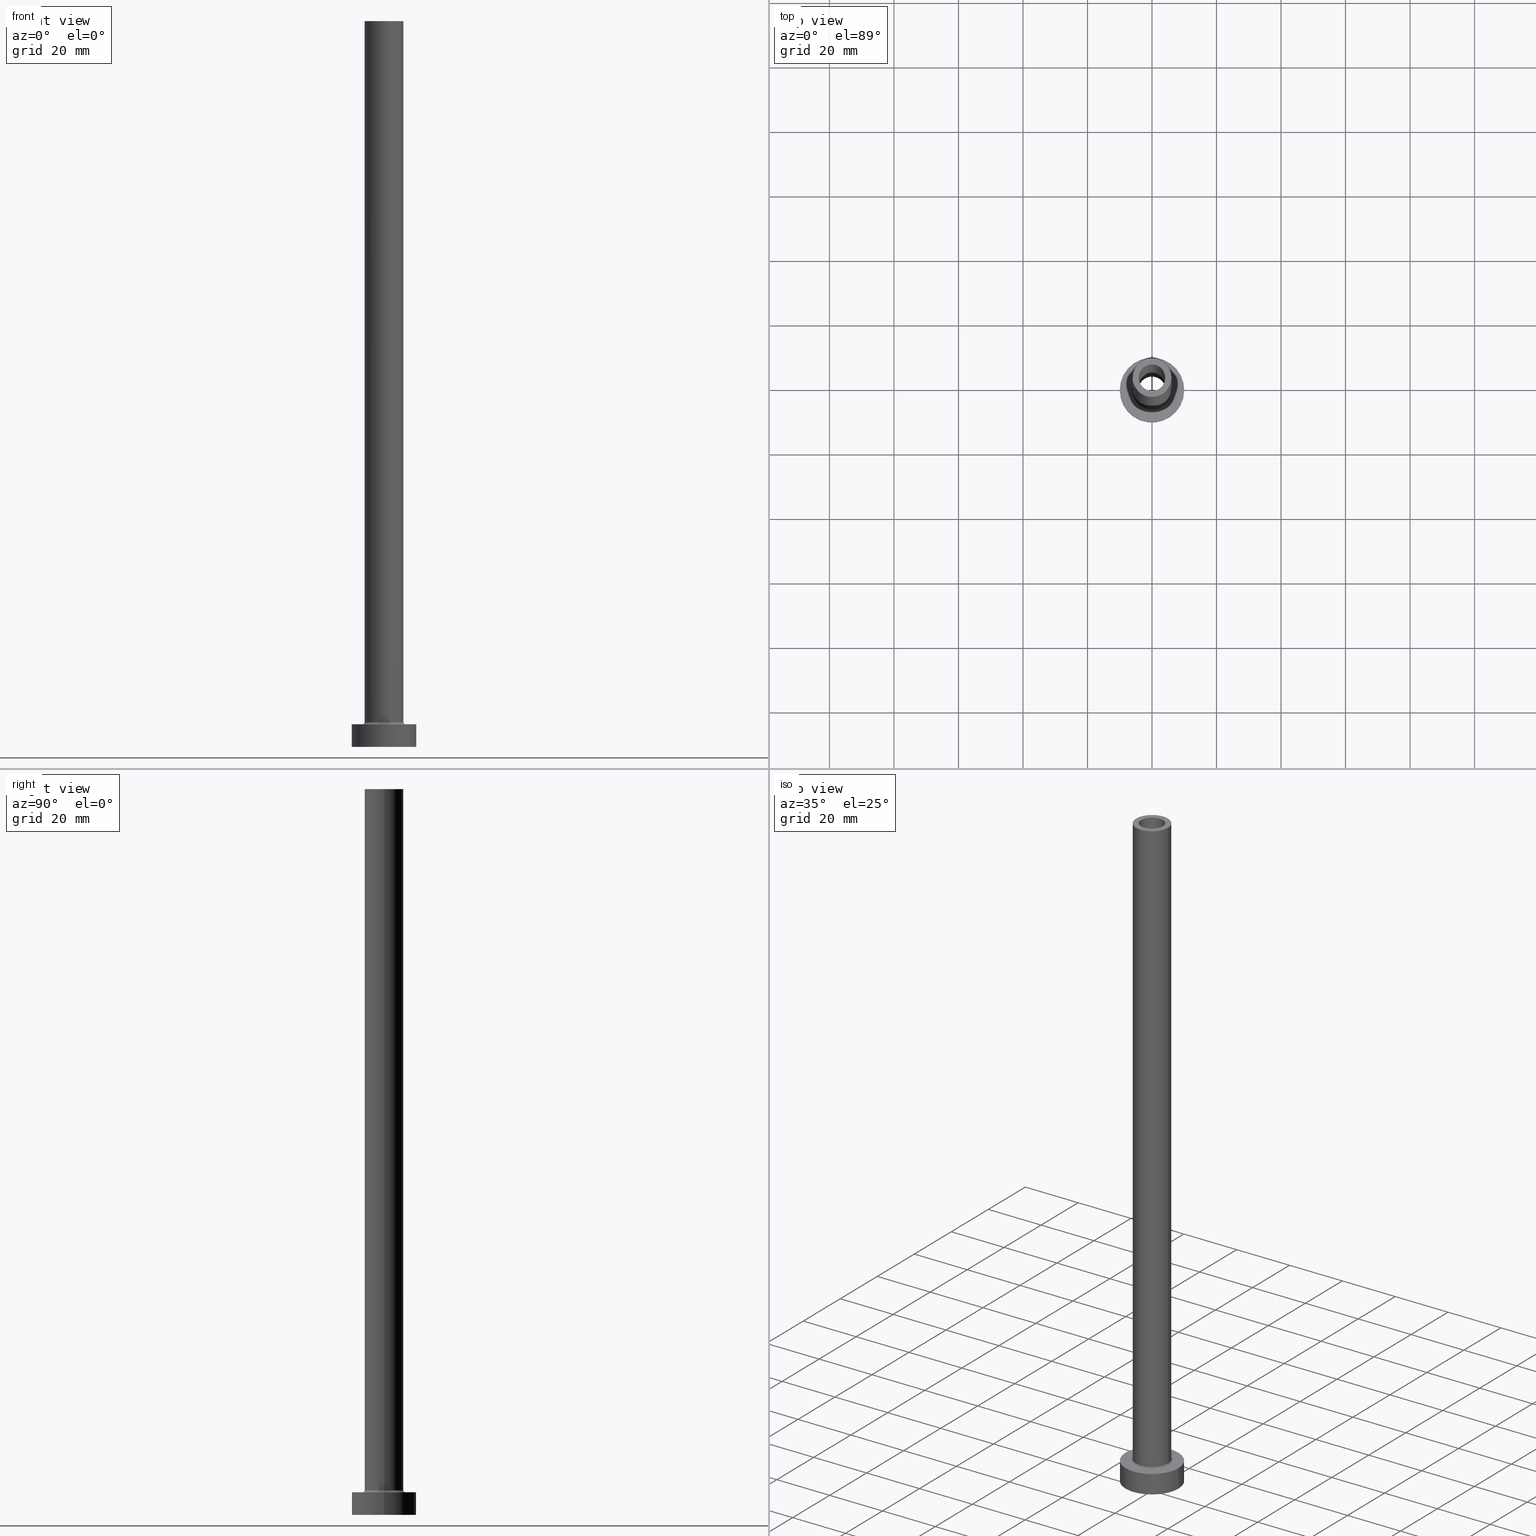
[diagram: canonical four-view strip — front | top / right | iso, engineering-drawing reading convention]
A machine part, canonical four-view strip (front | top / right | iso — engineering-drawing reading convention). The complete STEP part file that produces these views, byte-faithful:
ISO-10303-21;
HEADER;
FILE_DESCRIPTION (( 'STEP AP203' ),
    '1' );
FILE_NAME ('23bb.STEP',
    '2023-02-13T07:40:43',
    ( '' ),
    ( '' ),
    'SwSTEP 2.0',
    'SolidWorks 2019',
    '' );
FILE_SCHEMA (( 'CONFIG_CONTROL_DESIGN' ));
ENDSEC;

DATA;
#1 = AXIS2_PLACEMENT_3D ( 'NONE', #368, #460, #329 ) ;
#2 = VERTEX_POINT ( 'NONE', #112 ) ;
#3 = FACE_OUTER_BOUND ( 'NONE', #459, .T. ) ;
#4 = ORIENTED_EDGE ( 'NONE', *, *, #414, .F. ) ;
#5 = EDGE_CURVE ( 'NONE', #104, #36, #389, .T. ) ;
#6 = DIRECTION ( 'NONE',  ( 1.000000000000000000, 0.000000000000000000, 0.000000000000000000 ) ) ;
#7 = ORIENTED_EDGE ( 'NONE', *, *, #114, .F. ) ;
#8 = EDGE_LOOP ( 'NONE', ( #74, #228, #102, #168 ) ) ;
#9 = DIRECTION ( 'NONE',  ( 1.000000000000000000, 0.000000000000000000, 0.000000000000000000 ) ) ;
#10 = ORIENTED_EDGE ( 'NONE', *, *, #390, .F. ) ;
#11 = EDGE_CURVE ( 'NONE', #311, #433, #442, .T. ) ;
#12 = CYLINDRICAL_SURFACE ( 'NONE', #99, 10.00000000000000000 ) ;
#13 = EDGE_LOOP ( 'NONE', ( #193, #338 ) ) ;
#14 =( GEOMETRIC_REPRESENTATION_CONTEXT ( 3 ) GLOBAL_UNCERTAINTY_ASSIGNED_CONTEXT ( ( #385 ) ) GLOBAL_UNIT_ASSIGNED_CONTEXT ( ( #402, #182, #243 ) ) REPRESENTATION_CONTEXT ( 'NONE', 'WORKASPACE' ) );
#15 = DIRECTION ( 'NONE',  ( -1.000000000000000000, 0.000000000000000000, 0.000000000000000000 ) ) ;
#16 = DIRECTION ( 'NONE',  ( 1.000000000000000000, 0.000000000000000000, 0.000000000000000000 ) ) ;
#17 = DIRECTION ( 'NONE',  ( -0.000000000000000000, -0.000000000000000000, -1.000000000000000000 ) ) ;
#18 = AXIS2_PLACEMENT_3D ( 'NONE', #140, #432, #227 ) ;
#19 = CARTESIAN_POINT ( 'NONE',  ( 6.000000000000000888, 7.347880794884120722E-16, 7.700000000000012612 ) ) ;
#20 = CARTESIAN_POINT ( 'NONE',  ( 10.00000000000000000, 1.224646799147353256E-15, 7.000000000000000000 ) ) ;
#21 = DESIGN_CONTEXT ( 'detailed design', #316, 'design' ) ;
#22 = CARTESIAN_POINT ( 'NONE',  ( 0.000000000000000000, 0.000000000000000000, 180.0000000000000000 ) ) ;
#23 = APPROVAL ( #421, 'NEUR�EN�' ) ;
#24 = AXIS2_PLACEMENT_3D ( 'NONE', #150, #324, #280 ) ;
#25 = CARTESIAN_POINT ( 'NONE',  ( 0.000000000000000000, 0.000000000000000000, 0.000000000000000000 ) ) ;
#26 = CALENDAR_DATE ( 2023, 13, 2 ) ;
#27 = APPROVAL_DATE_TIME ( #255, #87 ) ;
#28 = AXIS2_PLACEMENT_3D ( 'NONE', #290, #451, #261 ) ;
#29 = AXIS2_PLACEMENT_3D ( 'NONE', #267, #134, #83 ) ;
#30 = PERSON_AND_ORGANIZATION ( #237, #167 ) ;
#31 = VERTEX_POINT ( 'NONE', #19 ) ;
#32 = PERSON_AND_ORGANIZATION_ROLE ( 'design_owner' ) ;
#33 = ORIENTED_EDGE ( 'NONE', *, *, #250, .T. ) ;
#34 = VERTEX_POINT ( 'NONE', #177 ) ;
#35 = EDGE_CURVE ( 'NONE', #104, #198, #153, .T. ) ;
#36 = VERTEX_POINT ( 'NONE', #404 ) ;
#37 = CIRCLE ( 'NONE', #412, 10.00000000000000000 ) ;
#38 = VERTEX_POINT ( 'NONE', #119 ) ;
#39 = DIRECTION ( 'NONE',  ( 0.000000000000000000, 0.000000000000000000, -1.000000000000000000 ) ) ;
#40 = VERTEX_POINT ( 'NONE', #452 ) ;
#41 = DIRECTION ( 'NONE',  ( 1.000000000000000000, 0.000000000000000000, 0.000000000000000000 ) ) ;
#42 = EDGE_LOOP ( 'NONE', ( #429, #375, #342, #336 ) ) ;
#43 = CARTESIAN_POINT ( 'NONE',  ( 0.000000000000000000, 0.000000000000000000, 225.0000000000000000 ) ) ;
#44 = ORIENTED_EDGE ( 'NONE', *, *, #262, .T. ) ;
#45 = DIRECTION ( 'NONE',  ( -0.000000000000000000, -0.000000000000000000, -1.000000000000000000 ) ) ;
#46 = ORIENTED_EDGE ( 'NONE', *, *, #384, .F. ) ;
#47 = EDGE_CURVE ( 'NONE', #301, #195, #410, .T. ) ;
#48 = ADVANCED_FACE ( 'NONE', ( #415 ), #247, .F. ) ;
#49 = AXIS2_PLACEMENT_3D ( 'NONE', #55, #321, #446 ) ;
#50 = FACE_OUTER_BOUND ( 'NONE', #137, .T. ) ;
#51 = LOCAL_TIME ( 8, 40, 43.00000000000000000, #298 ) ;
#52 = CARTESIAN_POINT ( 'NONE',  ( 0.000000000000000000, 0.000000000000000000, 0.000000000000000000 ) ) ;
#53 = CC_DESIGN_DATE_AND_TIME_ASSIGNMENT ( #124, #97, ( #175 ) ) ;
#54 = DIRECTION ( 'NONE',  ( 1.000000000000000000, 0.000000000000000000, 0.000000000000000000 ) ) ;
#55 = CARTESIAN_POINT ( 'NONE',  ( 0.000000000000000000, 0.000000000000000000, 7.700000000000012612 ) ) ;
#56 = AXIS2_PLACEMENT_3D ( 'NONE', #22, #383, #41 ) ;
#57 = VECTOR ( 'NONE', #457, 1000.000000000000000 ) ;
#58 = FACE_OUTER_BOUND ( 'NONE', #299, .T. ) ;
#59 = EDGE_CURVE ( 'NONE', #433, #190, #431, .T. ) ;
#60 = DIRECTION ( 'NONE',  ( 0.000000000000000000, 0.000000000000000000, -1.000000000000000000 ) ) ;
#61 = DIRECTION ( 'NONE',  ( 0.000000000000000000, 0.000000000000000000, 1.000000000000000000 ) ) ;
#62 = AXIS2_PLACEMENT_3D ( 'NONE', #289, #218, #443 ) ;
#63 = CARTESIAN_POINT ( 'NONE',  ( 0.000000000000000000, 0.000000000000000000, 180.0000000000000000 ) ) ;
#64 = APPLICATION_PROTOCOL_DEFINITION ( 'international standard', 'config_control_design', 1994, #316 ) ;
#65 = AXIS2_PLACEMENT_3D ( 'NONE', #348, #272, #9 ) ;
#66 = CIRCLE ( 'NONE', #90, 0.7000000000000000666 ) ;
#67 = APPROVAL_DATE_TIME ( #161, #226 ) ;
#68 = ORIENTED_EDGE ( 'NONE', *, *, #334, .F. ) ;
#69 = ORIENTED_EDGE ( 'NONE', *, *, #334, .T. ) ;
#70 = FACE_OUTER_BOUND ( 'NONE', #139, .T. ) ;
#71 = ORIENTED_EDGE ( 'NONE', *, *, #221, .F. ) ;
#72 = AXIS2_PLACEMENT_3D ( 'NONE', #63, #165, #297 ) ;
#73 = AXIS2_PLACEMENT_3D ( 'NONE', #127, #370, #101 ) ;
#74 = ORIENTED_EDGE ( 'NONE', *, *, #293, .F. ) ;
#75 = DIRECTION ( 'NONE',  ( 0.000000000000000000, 0.000000000000000000, 1.000000000000000000 ) ) ;
#76 = ADVANCED_FACE ( 'NONE', ( #251 ), #211, .F. ) ;
#77 = DIRECTION ( 'NONE',  ( 1.000000000000000000, 0.000000000000000000, -0.000000000000000000 ) ) ;
#78 = EDGE_LOOP ( 'NONE', ( #234, #239 ) ) ;
#79 = EDGE_CURVE ( 'NONE', #31, #430, #199, .T. ) ;
#80 = DIRECTION ( 'NONE',  ( -0.000000000000000000, -0.000000000000000000, -1.000000000000000000 ) ) ;
#81 = ORIENTED_EDGE ( 'NONE', *, *, #35, .T. ) ;
#82 = DIRECTION ( 'NONE',  ( -0.000000000000000000, -0.000000000000000000, -1.000000000000000000 ) ) ;
#83 = DIRECTION ( 'NONE',  ( 1.000000000000000000, 0.000000000000000000, -0.000000000000000000 ) ) ;
#84 = CC_DESIGN_APPROVAL ( #226, ( #175 ) ) ;
#85 = DIRECTION ( 'NONE',  ( 0.000000000000000000, 0.000000000000000000, 1.000000000000000000 ) ) ;
#86 = ORIENTED_EDGE ( 'NONE', *, *, #275, .F. ) ;
#87 = APPROVAL ( #366, 'NEUR�EN�' ) ;
#88 = CARTESIAN_POINT ( 'NONE',  ( 6.700000000000001066, 0.000000000000000000, 7.000000000000006217 ) ) ;
#89 = PLANE ( 'NONE',  #233 ) ;
#90 = AXIS2_PLACEMENT_3D ( 'NONE', #249, #215, #286 ) ;
#91 = EDGE_CURVE ( 'NONE', #34, #311, #94, .T. ) ;
#92 = DIRECTION ( 'NONE',  ( 0.000000000000000000, 0.000000000000000000, 1.000000000000000000 ) ) ;
#93 = CARTESIAN_POINT ( 'NONE',  ( 0.000000000000000000, 0.000000000000000000, 7.000000000000000000 ) ) ;
#94 = CIRCLE ( 'NONE', #453, 10.00000000000000000 ) ;
#95 = CARTESIAN_POINT ( 'NONE',  ( 0.000000000000000000, 0.000000000000000000, 7.700000000000012612 ) ) ;
#96 = COORDINATED_UNIVERSAL_TIME_OFFSET ( 1, 0, .AHEAD. ) ;
#97 = DATE_TIME_ROLE ( 'creation_date' ) ;
#98 = CC_DESIGN_DATE_AND_TIME_ASSIGNMENT ( #126, #461, ( #441 ) ) ;
#99 = AXIS2_PLACEMENT_3D ( 'NONE', #178, #80, #206 ) ;
#100 = AXIS2_PLACEMENT_3D ( 'NONE', #447, #61, #16 ) ;
#101 = DIRECTION ( 'NONE',  ( 1.000000000000000000, 0.000000000000000000, 0.000000000000000000 ) ) ;
#102 = ORIENTED_EDGE ( 'NONE', *, *, #186, .T. ) ;
#103 = CARTESIAN_POINT ( 'NONE',  ( -4.099999999999999645, 0.000000000000000000, 225.0000000000000000 ) ) ;
#104 = VERTEX_POINT ( 'NONE', #426 ) ;
#105 = DIRECTION ( 'NONE',  ( 0.000000000000000000, 0.000000000000000000, -1.000000000000000000 ) ) ;
#106 = ORIENTED_EDGE ( 'NONE', *, *, #436, .T. ) ;
#107 = AXIS2_PLACEMENT_3D ( 'NONE', #361, #401, #354 ) ;
#108 = LOCAL_TIME ( 8, 40, 43.00000000000000000, #96 ) ;
#109 = DIRECTION ( 'NONE',  ( 1.000000000000000000, 0.000000000000000000, 0.000000000000000000 ) ) ;
#110 = DIRECTION ( 'NONE',  ( 0.000000000000000000, 0.000000000000000000, 1.000000000000000000 ) ) ;
#111 = ORIENTED_EDGE ( 'NONE', *, *, #197, .T. ) ;
#112 = CARTESIAN_POINT ( 'NONE',  ( -4.250000000000000000, 0.000000000000000000, 0.000000000000000000 ) ) ;
#113 = PLANE ( 'NONE',  #403 ) ;
#114 = EDGE_CURVE ( 'NONE', #2, #195, #219, .T. ) ;
#115 = FACE_OUTER_BOUND ( 'NONE', #278, .T. ) ;
#116 = DIRECTION ( 'NONE',  ( 0.000000000000000000, 0.000000000000000000, -1.000000000000000000 ) ) ;
#117 = FACE_BOUND ( 'NONE', #192, .T. ) ;
#118 = DIRECTION ( 'NONE',  ( -0.000000000000000000, -0.000000000000000000, -1.000000000000000000 ) ) ;
#119 = CARTESIAN_POINT ( 'NONE',  ( -6.700000000000001066, 8.205133554287267548E-16, 7.000000000000006217 ) ) ;
#120 = MANIFOLD_SOLID_BREP ( 'Odebrat vysunut�m4', #440 ) ;
#121 = DIRECTION ( 'NONE',  ( 0.000000000000000000, 0.000000000000000000, 1.000000000000000000 ) ) ;
#122 = DATE_AND_TIME ( #254, #108 ) ;
#123 = EDGE_CURVE ( 'NONE', #143, #198, #283, .T. ) ;
#124 = DATE_AND_TIME ( #26, #449 ) ;
#125 = AXIS2_PLACEMENT_3D ( 'NONE', #151, #92, #353 ) ;
#126 = DATE_AND_TIME ( #300, #319 ) ;
#127 = CARTESIAN_POINT ( 'NONE',  ( 0.000000000000000000, 0.000000000000000000, 0.000000000000000000 ) ) ;
#128 = ADVANCED_FACE ( 'NONE', ( #163 ), #371, .T. ) ;
#129 = PERSON_AND_ORGANIZATION ( #237, #167 ) ;
#130 = ORIENTED_EDGE ( 'NONE', *, *, #189, .T. ) ;
#131 = CARTESIAN_POINT ( 'NONE',  ( 0.000000000000000000, 0.000000000000000000, 7.000000000000000000 ) ) ;
#132 = CIRCLE ( 'NONE', #411, 6.700000000000001066 ) ;
#133 = ORIENTED_EDGE ( 'NONE', *, *, #456, .T. ) ;
#134 = DIRECTION ( 'NONE',  ( 0.000000000000000000, 0.000000000000000000, 1.000000000000000000 ) ) ;
#135 = EDGE_LOOP ( 'NONE', ( #7, #71 ) ) ;
#136 = CARTESIAN_POINT ( 'NONE',  ( 4.250000000000000000, 5.204748896376249713E-16, 180.0000000000000000 ) ) ;
#137 = EDGE_LOOP ( 'NONE', ( #130, #347, #427, #397 ) ) ;
#138 = DIRECTION ( 'NONE',  ( 1.000000000000000000, 0.000000000000000000, 0.000000000000000000 ) ) ;
#139 = EDGE_LOOP ( 'NONE', ( #345, #147, #349, #307 ) ) ;
#140 = CARTESIAN_POINT ( 'NONE',  ( 0.000000000000000000, 0.000000000000000000, 7.000000000000000000 ) ) ;
#141 = VERTEX_POINT ( 'NONE', #418 ) ;
#142 = AXIS2_PLACEMENT_3D ( 'NONE', #230, #75, #351 ) ;
#143 = VERTEX_POINT ( 'NONE', #216 ) ;
#144 = CC_DESIGN_APPROVAL ( #87, ( #223 ) ) ;
#145 = CARTESIAN_POINT ( 'NONE',  ( 0.000000000000000000, 0.000000000000000000, 7.000000000000000000 ) ) ;
#146 = ORIENTED_EDGE ( 'NONE', *, *, #408, .T. ) ;
#147 = ORIENTED_EDGE ( 'NONE', *, *, #5, .T. ) ;
#148 = CARTESIAN_POINT ( 'NONE',  ( 0.000000000000000000, 0.000000000000000000, 180.0000000000000000 ) ) ;
#149 = ADVANCED_FACE ( 'NONE', ( #58 ), #444, .T. ) ;
#150 = CARTESIAN_POINT ( 'NONE',  ( 0.000000000000000000, 0.000000000000000000, 180.0000000000000000 ) ) ;
#151 = CARTESIAN_POINT ( 'NONE',  ( 0.000000000000000000, 0.000000000000000000, 0.000000000000000000 ) ) ;
#152 = VECTOR ( 'NONE', #381, 1000.000000000000000 ) ;
#153 = LINE ( 'NONE', #282, #252 ) ;
#154 = FACE_BOUND ( 'NONE', #13, .T. ) ;
#155 = AXIS2_PLACEMENT_3D ( 'NONE', #314, #39, #15 ) ;
#156 = AXIS2_PLACEMENT_3D ( 'NONE', #315, #60, #364 ) ;
#157 = DIRECTION ( 'NONE',  ( 1.000000000000000000, 0.000000000000000000, 0.000000000000000000 ) ) ;
#158 = CC_DESIGN_PERSON_AND_ORGANIZATION_ASSIGNMENT ( #409, #458, ( #175 ) ) ;
#159 = PERSON_AND_ORGANIZATION ( #237, #167 ) ;
#160 = CIRCLE ( 'NONE', #448, 6.000000000000000888 ) ;
#161 = DATE_AND_TIME ( #335, #200 ) ;
#162 = ORIENTED_EDGE ( 'NONE', *, *, #123, .T. ) ;
#163 = FACE_OUTER_BOUND ( 'NONE', #8, .T. ) ;
#164 = COORDINATED_UNIVERSAL_TIME_OFFSET ( 1, 0, .AHEAD. ) ;
#165 = DIRECTION ( 'NONE',  ( 0.000000000000000000, 0.000000000000000000, 1.000000000000000000 ) ) ;
#166 = ORIENTED_EDGE ( 'NONE', *, *, #79, .T. ) ;
#167 = ORGANIZATION ( 'NEUR�EN�', 'NEUR�EN�', '' ) ;
#168 = ORIENTED_EDGE ( 'NONE', *, *, #197, .F. ) ;
#169 = CARTESIAN_POINT ( 'NONE',  ( 0.000000000000000000, 0.000000000000000000, 225.0000000000000000 ) ) ;
#170 = ORIENTED_EDGE ( 'NONE', *, *, #308, .F. ) ;
#171 = CARTESIAN_POINT ( 'NONE',  ( 4.250000000000000000, 5.204748896376249713E-16, 0.000000000000000000 ) ) ;
#172 = DIRECTION ( 'NONE',  ( 1.000000000000000000, 0.000000000000000000, 0.000000000000000000 ) ) ;
#173 = CARTESIAN_POINT ( 'NONE',  ( 4.099999999999999645, 5.021051876504147385E-16, 180.0000000000000000 ) ) ;
#174 = TOROIDAL_SURFACE ( 'NONE', #100, 6.700000000000001066, 0.6999999999999999556 ) ;
#175 = PRODUCT_DEFINITION ( 'NEZN�M�', '', #223, #21 ) ;
#176 = CYLINDRICAL_SURFACE ( 'NONE', #155, 4.250000000000000000 ) ;
#177 = CARTESIAN_POINT ( 'NONE',  ( 10.00000000000000000, 1.224646799147353256E-15, 7.000000000000000000 ) ) ;
#178 = CARTESIAN_POINT ( 'NONE',  ( 0.000000000000000000, 0.000000000000000000, 7.000000000000000000 ) ) ;
#179 = AXIS2_PLACEMENT_3D ( 'NONE', #43, #240, #172 ) ;
#180 = FACE_OUTER_BOUND ( 'NONE', #303, .T. ) ;
#181 = APPROVAL_PERSON_ORGANIZATION ( #191, #87, #330 ) ;
#182 =( NAMED_UNIT ( * ) PLANE_ANGLE_UNIT ( ) SI_UNIT ( $, .RADIAN. ) );
#183 = DIRECTION ( 'NONE',  ( 0.000000000000000000, 0.000000000000000000, 1.000000000000000000 ) ) ;
#184 = APPROVAL_ROLE ( '' ) ;
#185 = MECHANICAL_CONTEXT ( 'NONE', #291, 'mechanical' ) ;
#186 = EDGE_CURVE ( 'NONE', #31, #40, #312, .T. ) ;
#187 = DIRECTION ( 'NONE',  ( 0.000000000000000000, 0.000000000000000000, 1.000000000000000000 ) ) ;
#188 = COORDINATED_UNIVERSAL_TIME_OFFSET ( 1, 0, .AHEAD. ) ;
#189 = EDGE_CURVE ( 'NONE', #270, #301, #207, .T. ) ;
#190 = VERTEX_POINT ( 'NONE', #269 ) ;
#191 = PERSON_AND_ORGANIZATION ( #237, #167 ) ;
#192 = EDGE_LOOP ( 'NONE', ( #201, #44 ) ) ;
#193 = ORIENTED_EDGE ( 'NONE', *, *, #250, .F. ) ;
#194 = PRODUCT_DEFINITION_SHAPE ( 'NONE', 'NONE',  #175 ) ;
#195 = VERTEX_POINT ( 'NONE', #171 ) ;
#196 = CYLINDRICAL_SURFACE ( 'NONE', #357, 4.099999999999999645 ) ;
#197 = EDGE_CURVE ( 'NONE', #379, #40, #248, .T. ) ;
#198 = VERTEX_POINT ( 'NONE', #173 ) ;
#199 = CIRCLE ( 'NONE', #28, 0.7000000000000000666 ) ;
#200 = LOCAL_TIME ( 8, 40, 43.00000000000000000, #333 ) ;
#201 = ORIENTED_EDGE ( 'NONE', *, *, #390, .T. ) ;
#202 = DIRECTION ( 'NONE',  ( -1.000000000000000000, 0.000000000000000000, 0.000000000000000000 ) ) ;
#203 = ORIENTED_EDGE ( 'NONE', *, *, #186, .F. ) ;
#204 = DIRECTION ( 'NONE',  ( 0.000000000000000000, 0.000000000000000000, -1.000000000000000000 ) ) ;
#205 = CC_DESIGN_PERSON_AND_ORGANIZATION_ASSIGNMENT ( #292, #417, ( #223 ) ) ;
#206 = DIRECTION ( 'NONE',  ( -1.000000000000000000, 0.000000000000000000, 0.000000000000000000 ) ) ;
#207 = CIRCLE ( 'NONE', #56, 4.250000000000000000 ) ;
#208 = AXIS2_PLACEMENT_3D ( 'NONE', #148, #279, #428 ) ;
#209 = LINE ( 'NONE', #424, #355 ) ;
#210 = CARTESIAN_POINT ( 'NONE',  ( 0.000000000000000000, 0.000000000000000000, 7.000000000000000000 ) ) ;
#211 = CYLINDRICAL_SURFACE ( 'NONE', #259, 4.099999999999999645 ) ;
#212 = DIRECTION ( 'NONE',  ( -0.000000000000000000, -0.000000000000000000, -1.000000000000000000 ) ) ;
#213 = AXIS2_PLACEMENT_3D ( 'NONE', #25, #187, #157 ) ;
#214 = CIRCLE ( 'NONE', #313, 6.700000000000001066 ) ;
#215 = DIRECTION ( 'NONE',  ( 1.224646799147353207E-16, 1.000000000000000000, -0.000000000000000000 ) ) ;
#216 = CARTESIAN_POINT ( 'NONE',  ( -4.099999999999999645, 0.000000000000000000, 180.0000000000000000 ) ) ;
#217 = CARTESIAN_POINT ( 'NONE',  ( 6.000000000000000888, 7.347880794884120722E-16, 225.0000000000000000 ) ) ;
#218 = DIRECTION ( 'NONE',  ( 0.000000000000000000, 0.000000000000000000, 1.000000000000000000 ) ) ;
#219 = CIRCLE ( 'NONE', #343, 4.250000000000000000 ) ;
#220 = DIRECTION ( 'NONE',  ( 1.000000000000000000, 0.000000000000000000, 0.000000000000000000 ) ) ;
#221 = EDGE_CURVE ( 'NONE', #195, #2, #274, .T. ) ;
#222 = APPROVAL_ROLE ( '' ) ;
#223 = PRODUCT_DEFINITION_FORMATION_WITH_SPECIFIED_SOURCE ( 'LIBOVOLN�', '', #268, .NOT_KNOWN. ) ;
#224 = CALENDAR_DATE ( 2023, 13, 2 ) ;
#225 = ORIENTED_EDGE ( 'NONE', *, *, #114, .T. ) ;
#226 = APPROVAL ( #373, 'NEUR�EN�' ) ;
#227 = DIRECTION ( 'NONE',  ( -1.000000000000000000, 0.000000000000000000, 0.000000000000000000 ) ) ;
#228 = ORIENTED_EDGE ( 'NONE', *, *, #414, .T. ) ;
#229 = CARTESIAN_POINT ( 'NONE',  ( 0.000000000000000000, 0.000000000000000000, 0.000000000000000000 ) ) ;
#230 = CARTESIAN_POINT ( 'NONE',  ( 0.000000000000000000, 0.000000000000000000, 7.700000000000012612 ) ) ;
#231 = EDGE_LOOP ( 'NONE', ( #46, #203, #166, #236 ) ) ;
#232 = VECTOR ( 'NONE', #82, 1000.000000000000000 ) ;
#233 = AXIS2_PLACEMENT_3D ( 'NONE', #445, #183, #246 ) ;
#234 = ORIENTED_EDGE ( 'NONE', *, *, #59, .F. ) ;
#235 = DIRECTION ( 'NONE',  ( 0.000000000000000000, 0.000000000000000000, 1.000000000000000000 ) ) ;
#236 = ORIENTED_EDGE ( 'NONE', *, *, #262, .F. ) ;
#237 = PERSON ( 'NEUR�EN�', 'NEUR�EN�', 'NEUR�EN�', ('NEUR�EN�'), ('NEUR�EN�'), ('NEUR�EN�') ) ;
#238 = CARTESIAN_POINT ( 'NONE',  ( -10.00000000000000000, 0.000000000000000000, 7.000000000000000000 ) ) ;
#239 = ORIENTED_EDGE ( 'NONE', *, *, #408, .F. ) ;
#240 = DIRECTION ( 'NONE',  ( 0.000000000000000000, 0.000000000000000000, 1.000000000000000000 ) ) ;
#241 = CIRCLE ( 'NONE', #179, 4.099999999999999645 ) ;
#242 = APPROVAL_PERSON_ORGANIZATION ( #257, #23, #184 ) ;
#243 =( NAMED_UNIT ( * ) SI_UNIT ( $, .STERADIAN. ) SOLID_ANGLE_UNIT ( ) );
#244 = EDGE_CURVE ( 'NONE', #270, #2, #209, .T. ) ;
#245 = FACE_OUTER_BOUND ( 'NONE', #380, .T. ) ;
#246 = DIRECTION ( 'NONE',  ( 1.000000000000000000, 0.000000000000000000, -0.000000000000000000 ) ) ;
#247 = TOROIDAL_SURFACE ( 'NONE', #399, 6.700000000000001066, 0.6999999999999999556 ) ;
#248 = LINE ( 'NONE', #407, #318 ) ;
#249 = CARTESIAN_POINT ( 'NONE',  ( -6.700000000000001066, 8.205133554287267548E-16, 7.700000000000012612 ) ) ;
#250 = EDGE_CURVE ( 'NONE', #36, #104, #241, .T. ) ;
#251 = FACE_OUTER_BOUND ( 'NONE', #258, .T. ) ;
#252 = VECTOR ( 'NONE', #116, 1000.000000000000000 ) ;
#253 = CARTESIAN_POINT ( 'NONE',  ( 4.250000000000000000, 5.204748896376249713E-16, 192.0208152801712913 ) ) ;
#254 = CALENDAR_DATE ( 2023, 13, 2 ) ;
#255 = DATE_AND_TIME ( #224, #51 ) ;
#256 = DIRECTION ( 'NONE',  ( 1.000000000000000000, 0.000000000000000000, 0.000000000000000000 ) ) ;
#257 = PERSON_AND_ORGANIZATION ( #237, #167 ) ;
#258 = EDGE_LOOP ( 'NONE', ( #33, #81, #435, #273 ) ) ;
#259 = AXIS2_PLACEMENT_3D ( 'NONE', #419, #376, #325 ) ;
#260 = DIRECTION ( 'NONE',  ( -0.000000000000000000, -0.000000000000000000, -1.000000000000000000 ) ) ;
#261 = DIRECTION ( 'NONE',  ( 0.000000000000000000, 0.000000000000000000, -1.000000000000000000 ) ) ;
#262 = EDGE_CURVE ( 'NONE', #38, #430, #132, .T. ) ;
#263 = ORIENTED_EDGE ( 'NONE', *, *, #367, .T. ) ;
#264 = LINE ( 'NONE', #103, #152 ) ;
#265 = ORIENTED_EDGE ( 'NONE', *, *, #293, .T. ) ;
#266 = ORIENTED_EDGE ( 'NONE', *, *, #384, .T. ) ;
#267 = CARTESIAN_POINT ( 'NONE',  ( 0.000000000000000000, 0.000000000000000000, 180.0000000000000000 ) ) ;
#268 = PRODUCT ( '23bb', '23bb', '', ( #185 ) ) ;
#269 = CARTESIAN_POINT ( 'NONE',  ( 10.00000000000000000, 1.224646799147353256E-15, 0.000000000000000000 ) ) ;
#270 = VERTEX_POINT ( 'NONE', #310 ) ;
#271 = CC_DESIGN_PERSON_AND_ORGANIZATION_ASSIGNMENT ( #30, #32, ( #268 ) ) ;
#272 = DIRECTION ( 'NONE',  ( -0.000000000000000000, -0.000000000000000000, -1.000000000000000000 ) ) ;
#273 = ORIENTED_EDGE ( 'NONE', *, *, #359, .F. ) ;
#274 = CIRCLE ( 'NONE', #65, 4.250000000000000000 ) ;
#275 = EDGE_CURVE ( 'NONE', #379, #141, #296, .T. ) ;
#276 = DIRECTION ( 'NONE',  ( 0.000000000000000000, 0.000000000000000000, 1.000000000000000000 ) ) ;
#277 = ORIENTED_EDGE ( 'NONE', *, *, #11, .F. ) ;
#278 = EDGE_LOOP ( 'NONE', ( #339, #69, #423, #225 ) ) ;
#279 = DIRECTION ( 'NONE',  ( 0.000000000000000000, 0.000000000000000000, 1.000000000000000000 ) ) ;
#280 = DIRECTION ( 'NONE',  ( 1.000000000000000000, 0.000000000000000000, 0.000000000000000000 ) ) ;
#281 = CC_DESIGN_PERSON_AND_ORGANIZATION_ASSIGNMENT ( #129, #455, ( #441 ) ) ;
#282 = CARTESIAN_POINT ( 'NONE',  ( 4.099999999999999645, 5.021051876504147385E-16, 225.0000000000000000 ) ) ;
#283 = CIRCLE ( 'NONE', #72, 4.099999999999999645 ) ;
#284 = PLANE ( 'NONE',  #62 ) ;
#285 = CARTESIAN_POINT ( 'NONE',  ( -10.00000000000000000, 0.000000000000000000, 0.000000000000000000 ) ) ;
#286 = DIRECTION ( 'NONE',  ( -1.000000000000000000, 1.224646799147353454E-16, 0.000000000000000000 ) ) ;
#287 = ADVANCED_FACE ( 'NONE', ( #350 ), #341, .T. ) ;
#288 = CIRCLE ( 'NONE', #208, 4.250000000000000000 ) ;
#289 = CARTESIAN_POINT ( 'NONE',  ( 0.000000000000000000, 0.000000000000000000, 225.0000000000000000 ) ) ;
#290 = CARTESIAN_POINT ( 'NONE',  ( 6.700000000000001066, 0.000000000000000000, 7.700000000000012612 ) ) ;
#291 = APPLICATION_CONTEXT ( 'configuration controlled 3d designs of mechanical parts and assemblies' ) ;
#292 = PERSON_AND_ORGANIZATION ( #237, #167 ) ;
#293 = EDGE_CURVE ( 'NONE', #141, #379, #160, .T. ) ;
#294 = AXIS2_PLACEMENT_3D ( 'NONE', #356, #85, #396 ) ;
#295 = SECURITY_CLASSIFICATION_LEVEL ( 'unclassified' ) ;
#296 = CIRCLE ( 'NONE', #420, 6.000000000000000888 ) ;
#297 = DIRECTION ( 'NONE',  ( 1.000000000000000000, 0.000000000000000000, 0.000000000000000000 ) ) ;
#298 = COORDINATED_UNIVERSAL_TIME_OFFSET ( 1, 0, .AHEAD. ) ;
#299 = EDGE_LOOP ( 'NONE', ( #4, #86, #111, #340 ) ) ;
#300 = CALENDAR_DATE ( 2023, 13, 2 ) ;
#301 = VERTEX_POINT ( 'NONE', #136 ) ;
#302 = DIRECTION ( 'NONE',  ( 0.000000000000000000, 0.000000000000000000, 1.000000000000000000 ) ) ;
#303 = EDGE_LOOP ( 'NONE', ( #170, #266, #10, #425 ) ) ;
#304 = FACE_OUTER_BOUND ( 'NONE', #78, .T. ) ;
#305 = ORIENTED_EDGE ( 'NONE', *, *, #189, .F. ) ;
#306 = DIRECTION ( 'NONE',  ( -0.000000000000000000, -0.000000000000000000, -1.000000000000000000 ) ) ;
#307 = ORIENTED_EDGE ( 'NONE', *, *, #456, .F. ) ;
#308 = EDGE_CURVE ( 'NONE', #40, #31, #332, .T. ) ;
#309 = ADVANCED_FACE ( 'NONE', ( #392, #304 ), #113, .F. ) ;
#310 = CARTESIAN_POINT ( 'NONE',  ( -4.250000000000000000, 0.000000000000000000, 180.0000000000000000 ) ) ;
#311 = VERTEX_POINT ( 'NONE', #238 ) ;
#312 = CIRCLE ( 'NONE', #49, 6.000000000000000888 ) ;
#313 = AXIS2_PLACEMENT_3D ( 'NONE', #93, #17, #406 ) ;
#314 = CARTESIAN_POINT ( 'NONE',  ( 0.000000000000000000, 0.000000000000000000, 192.0208152801712913 ) ) ;
#315 = CARTESIAN_POINT ( 'NONE',  ( 0.000000000000000000, 0.000000000000000000, 192.0208152801712913 ) ) ;
#316 = APPLICATION_CONTEXT ( 'configuration controlled 3d designs of mechanical parts and assemblies' ) ;
#317 = ADVANCED_FACE ( 'NONE', ( #394 ), #12, .T. ) ;
#318 = VECTOR ( 'NONE', #306, 1000.000000000000000 ) ;
#319 = LOCAL_TIME ( 8, 40, 43.00000000000000000, #164 ) ;
#320 = CYLINDRICAL_SURFACE ( 'NONE', #156, 4.250000000000000000 ) ;
#321 = DIRECTION ( 'NONE',  ( 0.000000000000000000, 0.000000000000000000, 1.000000000000000000 ) ) ;
#322 = CARTESIAN_POINT ( 'NONE',  ( -10.00000000000000000, 0.000000000000000000, 7.000000000000000000 ) ) ;
#323 = CC_DESIGN_PERSON_AND_ORGANIZATION_ASSIGNMENT ( #159, #377, ( #223 ) ) ;
#324 = DIRECTION ( 'NONE',  ( 0.000000000000000000, 0.000000000000000000, 1.000000000000000000 ) ) ;
#325 = DIRECTION ( 'NONE',  ( -1.000000000000000000, 0.000000000000000000, 0.000000000000000000 ) ) ;
#326 = SHAPE_DEFINITION_REPRESENTATION ( #194, #331 ) ;
#327 = PERSON_AND_ORGANIZATION ( #237, #167 ) ;
#328 = ADVANCED_FACE ( 'NONE', ( #50 ), #176, .F. ) ;
#329 = DIRECTION ( 'NONE',  ( -1.000000000000000000, 0.000000000000000000, 0.000000000000000000 ) ) ;
#330 = APPROVAL_ROLE ( '' ) ;
#331 = ADVANCED_BREP_SHAPE_REPRESENTATION ( '23bb', ( #120, #73 ), #14 ) ;
#332 = CIRCLE ( 'NONE', #142, 6.000000000000000888 ) ;
#333 = COORDINATED_UNIVERSAL_TIME_OFFSET ( 1, 0, .AHEAD. ) ;
#334 = EDGE_CURVE ( 'NONE', #301, #270, #288, .T. ) ;
#335 = CALENDAR_DATE ( 2023, 13, 2 ) ;
#336 = ORIENTED_EDGE ( 'NONE', *, *, #59, .T. ) ;
#337 = ADVANCED_FACE ( 'NONE', ( #439, #3 ), #398, .F. ) ;
#338 = ORIENTED_EDGE ( 'NONE', *, *, #5, .F. ) ;
#339 = ORIENTED_EDGE ( 'NONE', *, *, #47, .F. ) ;
#340 = ORIENTED_EDGE ( 'NONE', *, *, #308, .T. ) ;
#341 = CYLINDRICAL_SURFACE ( 'NONE', #18, 10.00000000000000000 ) ;
#342 = ORIENTED_EDGE ( 'NONE', *, *, #11, .T. ) ;
#343 = AXIS2_PLACEMENT_3D ( 'NONE', #229, #260, #256 ) ;
#344 = CIRCLE ( 'NONE', #125, 10.00000000000000000 ) ;
#345 = ORIENTED_EDGE ( 'NONE', *, *, #35, .F. ) ;
#346 = DIRECTION ( 'NONE',  ( 1.000000000000000000, 0.000000000000000000, 0.000000000000000000 ) ) ;
#347 = ORIENTED_EDGE ( 'NONE', *, *, #47, .T. ) ;
#348 = CARTESIAN_POINT ( 'NONE',  ( 0.000000000000000000, 0.000000000000000000, 0.000000000000000000 ) ) ;
#349 = ORIENTED_EDGE ( 'NONE', *, *, #359, .T. ) ;
#350 = FACE_OUTER_BOUND ( 'NONE', #42, .T. ) ;
#351 = DIRECTION ( 'NONE',  ( 1.000000000000000000, 0.000000000000000000, 0.000000000000000000 ) ) ;
#352 = APPLICATION_PROTOCOL_DEFINITION ( 'international standard', 'config_control_design', 1994, #291 ) ;
#353 = DIRECTION ( 'NONE',  ( 1.000000000000000000, 0.000000000000000000, 0.000000000000000000 ) ) ;
#354 = DIRECTION ( 'NONE',  ( -1.000000000000000000, 0.000000000000000000, 0.000000000000000000 ) ) ;
#355 = VECTOR ( 'NONE', #204, 1000.000000000000000 ) ;
#356 = CARTESIAN_POINT ( 'NONE',  ( 0.000000000000000000, 0.000000000000000000, 225.0000000000000000 ) ) ;
#357 = AXIS2_PLACEMENT_3D ( 'NONE', #169, #105, #202 ) ;
#358 = CC_DESIGN_APPROVAL ( #23, ( #441 ) ) ;
#359 = EDGE_CURVE ( 'NONE', #36, #143, #264, .T. ) ;
#360 = FACE_OUTER_BOUND ( 'NONE', #393, .T. ) ;
#361 = CARTESIAN_POINT ( 'NONE',  ( 0.000000000000000000, 0.000000000000000000, 225.0000000000000000 ) ) ;
#362 = ADVANCED_FACE ( 'NONE', ( #70 ), #196, .F. ) ;
#363 = LINE ( 'NONE', #20, #365 ) ;
#364 = DIRECTION ( 'NONE',  ( -1.000000000000000000, 0.000000000000000000, 0.000000000000000000 ) ) ;
#365 = VECTOR ( 'NONE', #212, 1000.000000000000000 ) ;
#366 = APPROVAL_STATUS ( 'not_yet_approved' ) ;
#367 = EDGE_CURVE ( 'NONE', #34, #190, #363, .T. ) ;
#368 = CARTESIAN_POINT ( 'NONE',  ( 0.000000000000000000, 0.000000000000000000, 225.0000000000000000 ) ) ;
#369 = APPROVAL_DATE_TIME ( #122, #23 ) ;
#370 = DIRECTION ( 'NONE',  ( 0.000000000000000000, 0.000000000000000000, 1.000000000000000000 ) ) ;
#371 = CYLINDRICAL_SURFACE ( 'NONE', #1, 6.000000000000000888 ) ;
#372 = ADVANCED_FACE ( 'NONE', ( #154, #245 ), #284, .T. ) ;
#373 = APPROVAL_STATUS ( 'not_yet_approved' ) ;
#374 = VECTOR ( 'NONE', #118, 1000.000000000000000 ) ;
#375 = ORIENTED_EDGE ( 'NONE', *, *, #436, .F. ) ;
#376 = DIRECTION ( 'NONE',  ( 0.000000000000000000, 0.000000000000000000, -1.000000000000000000 ) ) ;
#377 = PERSON_AND_ORGANIZATION_ROLE ( 'creator' ) ;
#378 = EDGE_LOOP ( 'NONE', ( #162, #133 ) ) ;
#379 = VERTEX_POINT ( 'NONE', #400 ) ;
#380 = EDGE_LOOP ( 'NONE', ( #388, #265 ) ) ;
#381 = DIRECTION ( 'NONE',  ( 0.000000000000000000, 0.000000000000000000, -1.000000000000000000 ) ) ;
#382 = EDGE_LOOP ( 'NONE', ( #437, #263, #146, #277 ) ) ;
#383 = DIRECTION ( 'NONE',  ( 0.000000000000000000, 0.000000000000000000, 1.000000000000000000 ) ) ;
#384 = EDGE_CURVE ( 'NONE', #40, #38, #66, .T. ) ;
#385 = UNCERTAINTY_MEASURE_WITH_UNIT (LENGTH_MEASURE( 1.000000000000000082E-05 ), #402, 'distance_accuracy_value', 'NONE');
#386 = ORIENTED_EDGE ( 'NONE', *, *, #91, .T. ) ;
#387 = CARTESIAN_POINT ( 'NONE',  ( 0.000000000000000000, 0.000000000000000000, 225.0000000000000000 ) ) ;
#388 = ORIENTED_EDGE ( 'NONE', *, *, #275, .T. ) ;
#389 = CIRCLE ( 'NONE', #294, 4.099999999999999645 ) ;
#390 = EDGE_CURVE ( 'NONE', #430, #38, #214, .T. ) ;
#391 = APPROVAL_PERSON_ORGANIZATION ( #327, #226, #222 ) ;
#392 = FACE_BOUND ( 'NONE', #135, .T. ) ;
#393 = EDGE_LOOP ( 'NONE', ( #106, #386 ) ) ;
#394 = FACE_OUTER_BOUND ( 'NONE', #382, .T. ) ;
#395 = PRODUCT_RELATED_PRODUCT_CATEGORY ( 'detail', '', ( #268 ) ) ;
#396 = DIRECTION ( 'NONE',  ( 1.000000000000000000, 0.000000000000000000, 0.000000000000000000 ) ) ;
#397 = ORIENTED_EDGE ( 'NONE', *, *, #244, .F. ) ;
#398 = PLANE ( 'NONE',  #29 ) ;
#399 = AXIS2_PLACEMENT_3D ( 'NONE', #95, #413, #220 ) ;
#400 = CARTESIAN_POINT ( 'NONE',  ( -6.000000000000000888, 0.000000000000000000, 225.0000000000000000 ) ) ;
#401 = DIRECTION ( 'NONE',  ( -0.000000000000000000, -0.000000000000000000, -1.000000000000000000 ) ) ;
#402 =( LENGTH_UNIT ( ) NAMED_UNIT ( * ) SI_UNIT ( .MILLI., .METRE. ) );
#403 = AXIS2_PLACEMENT_3D ( 'NONE', #52, #110, #77 ) ;
#404 = CARTESIAN_POINT ( 'NONE',  ( -4.099999999999999645, 0.000000000000000000, 225.0000000000000000 ) ) ;
#405 = CC_DESIGN_SECURITY_CLASSIFICATION ( #441, ( #223 ) ) ;
#406 = DIRECTION ( 'NONE',  ( 1.000000000000000000, 0.000000000000000000, 0.000000000000000000 ) ) ;
#407 = CARTESIAN_POINT ( 'NONE',  ( -6.000000000000000888, 0.000000000000000000, 225.0000000000000000 ) ) ;
#408 = EDGE_CURVE ( 'NONE', #190, #433, #344, .T. ) ;
#409 = PERSON_AND_ORGANIZATION ( #237, #167 ) ;
#410 = LINE ( 'NONE', #253, #57 ) ;
#411 = AXIS2_PLACEMENT_3D ( 'NONE', #145, #45, #6 ) ;
#412 = AXIS2_PLACEMENT_3D ( 'NONE', #210, #121, #54 ) ;
#413 = DIRECTION ( 'NONE',  ( 0.000000000000000000, 0.000000000000000000, 1.000000000000000000 ) ) ;
#414 = EDGE_CURVE ( 'NONE', #141, #31, #450, .T. ) ;
#415 = FACE_OUTER_BOUND ( 'NONE', #231, .T. ) ;
#416 = ADVANCED_FACE ( 'NONE', ( #115 ), #320, .F. ) ;
#417 = PERSON_AND_ORGANIZATION_ROLE ( 'design_supplier' ) ;
#418 = CARTESIAN_POINT ( 'NONE',  ( 6.000000000000000888, 7.347880794884120722E-16, 225.0000000000000000 ) ) ;
#419 = CARTESIAN_POINT ( 'NONE',  ( 0.000000000000000000, 0.000000000000000000, 225.0000000000000000 ) ) ;
#420 = AXIS2_PLACEMENT_3D ( 'NONE', #387, #276, #346 ) ;
#421 = APPROVAL_STATUS ( 'not_yet_approved' ) ;
#422 = CIRCLE ( 'NONE', #24, 4.099999999999999645 ) ;
#423 = ORIENTED_EDGE ( 'NONE', *, *, #244, .T. ) ;
#424 = CARTESIAN_POINT ( 'NONE',  ( -4.250000000000000000, 0.000000000000000000, 192.0208152801712913 ) ) ;
#425 = ORIENTED_EDGE ( 'NONE', *, *, #79, .F. ) ;
#426 = CARTESIAN_POINT ( 'NONE',  ( 4.099999999999999645, 5.021051876504147385E-16, 225.0000000000000000 ) ) ;
#427 = ORIENTED_EDGE ( 'NONE', *, *, #221, .T. ) ;
#428 = DIRECTION ( 'NONE',  ( 1.000000000000000000, 0.000000000000000000, 0.000000000000000000 ) ) ;
#429 = ORIENTED_EDGE ( 'NONE', *, *, #367, .F. ) ;
#430 = VERTEX_POINT ( 'NONE', #88 ) ;
#431 = CIRCLE ( 'NONE', #213, 10.00000000000000000 ) ;
#432 = DIRECTION ( 'NONE',  ( -0.000000000000000000, -0.000000000000000000, -1.000000000000000000 ) ) ;
#433 = VERTEX_POINT ( 'NONE', #285 ) ;
#434 = CARTESIAN_POINT ( 'NONE',  ( 0.000000000000000000, 0.000000000000000000, 225.0000000000000000 ) ) ;
#435 = ORIENTED_EDGE ( 'NONE', *, *, #123, .F. ) ;
#436 = EDGE_CURVE ( 'NONE', #311, #34, #37, .T. ) ;
#437 = ORIENTED_EDGE ( 'NONE', *, *, #91, .F. ) ;
#438 = ADVANCED_FACE ( 'NONE', ( #180 ), #174, .F. ) ;
#439 = FACE_BOUND ( 'NONE', #378, .T. ) ;
#440 = CLOSED_SHELL ( 'NONE', ( #76, #328, #438, #128, #317, #287, #454, #309, #149, #372, #48, #416, #337, #362 ) ) ;
#441 = SECURITY_CLASSIFICATION ( '', '', #295 ) ;
#442 = LINE ( 'NONE', #322, #232 ) ;
#443 = DIRECTION ( 'NONE',  ( 1.000000000000000000, 0.000000000000000000, -0.000000000000000000 ) ) ;
#444 = CYLINDRICAL_SURFACE ( 'NONE', #107, 6.000000000000000888 ) ;
#445 = CARTESIAN_POINT ( 'NONE',  ( 0.000000000000000000, 0.000000000000000000, 7.000000000000000000 ) ) ;
#446 = DIRECTION ( 'NONE',  ( 1.000000000000000000, 0.000000000000000000, 0.000000000000000000 ) ) ;
#447 = CARTESIAN_POINT ( 'NONE',  ( 0.000000000000000000, 0.000000000000000000, 7.700000000000012612 ) ) ;
#448 = AXIS2_PLACEMENT_3D ( 'NONE', #434, #235, #109 ) ;
#449 = LOCAL_TIME ( 8, 40, 43.00000000000000000, #188 ) ;
#450 = LINE ( 'NONE', #217, #374 ) ;
#451 = DIRECTION ( 'NONE',  ( 0.000000000000000000, -1.000000000000000000, 0.000000000000000000 ) ) ;
#452 = CARTESIAN_POINT ( 'NONE',  ( -6.000000000000000888, 0.000000000000000000, 7.700000000000012612 ) ) ;
#453 = AXIS2_PLACEMENT_3D ( 'NONE', #131, #302, #138 ) ;
#454 = ADVANCED_FACE ( 'NONE', ( #117, #360 ), #89, .T. ) ;
#455 = PERSON_AND_ORGANIZATION_ROLE ( 'classification_officer' ) ;
#456 = EDGE_CURVE ( 'NONE', #198, #143, #422, .T. ) ;
#457 = DIRECTION ( 'NONE',  ( 0.000000000000000000, 0.000000000000000000, -1.000000000000000000 ) ) ;
#458 = PERSON_AND_ORGANIZATION_ROLE ( 'creator' ) ;
#459 = EDGE_LOOP ( 'NONE', ( #305, #68 ) ) ;
#460 = DIRECTION ( 'NONE',  ( -0.000000000000000000, -0.000000000000000000, -1.000000000000000000 ) ) ;
#461 = DATE_TIME_ROLE ( 'classification_date' ) ;
ENDSEC;
END-ISO-10303-21;
